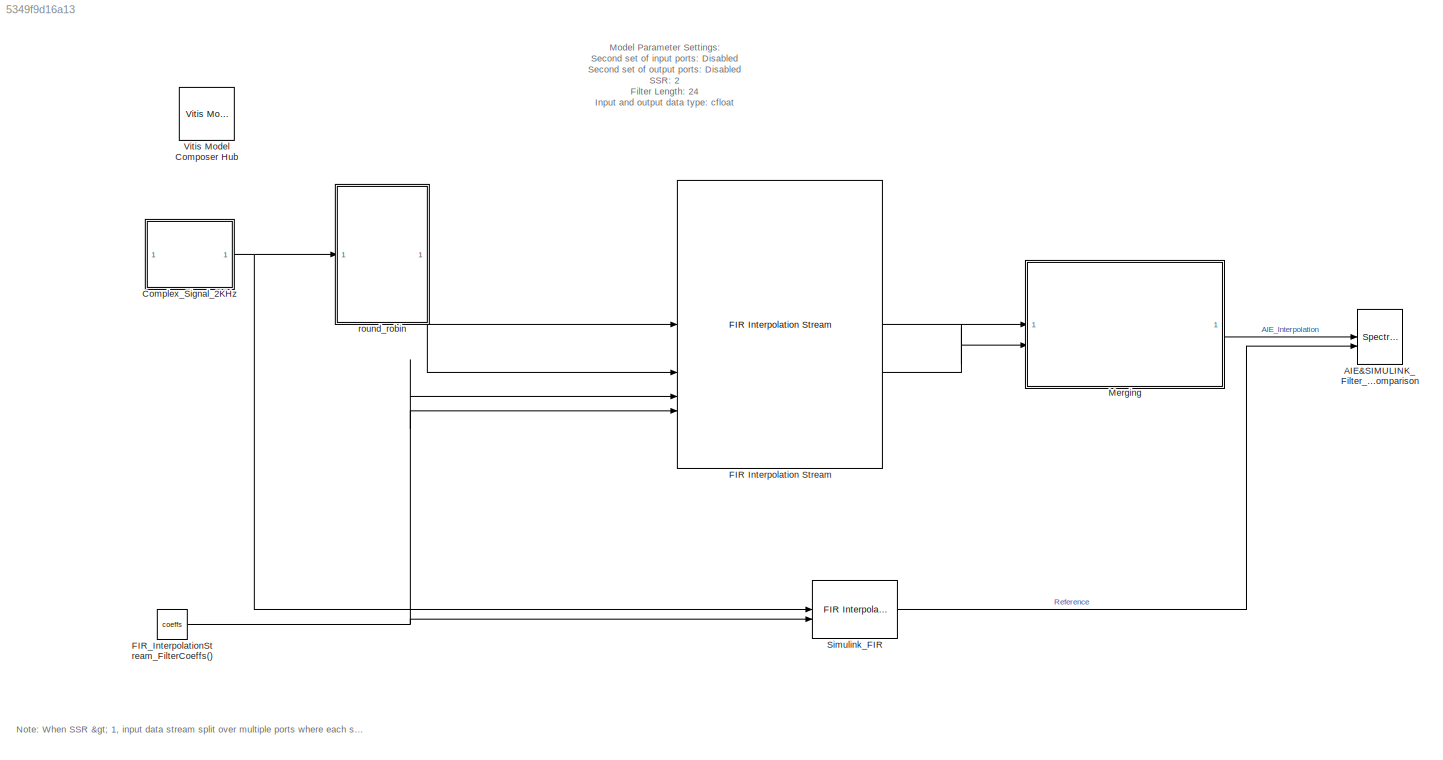
MODEL slx_5349f9d16a13
KIND model
CONFIG AbsTol = auto
CONFIG EnableMultiTasking = off
CONFIG FixedStep = auto
CONFIG InitFcn = SSR = 2;\nFs = 50e3;               % Sampling Frequency\nFpass = 16000;            % Passband Frequency\nFstop = 23000;            % Stopband Frequency\nDpass = 0.00460513763;    % Passband Ripple\nDstop = 0.0001;           % Stopband Attenuation\ndens  = 16;                   % Density Factor\n% Calculate the order from the parameters using FIRPMORD.\n[N, Fo, Ao, W] = firpmord([Fpass, Fstop]/(Fs/2), [1 0...<+121ch>
CONFIG MaxStep = auto
CONFIG MinStep = auto
CONFIG RelTol = 1e-3
CONFIG SampleTimeConstraint = Unconstrained
CONFIG SolverName = VariableStepAuto
CONFIG StartTime = 0.0
CONFIG StopTime = 5
BLOCK [SpectrumAnalyzer] AIE&SIMULINK_Filter_Spectrum_Comparison
  AllowFFTLengthLessThanSamplesPerUpdate = on
  AveragingMethod = Exponential
  ChannelNames = [""]
  DefaultConfigurationName = spbscopes.SpectrumAnalyzerBlockCfg
  GraphicalSettings = {"GraphicalSettings":{"Style":{"BackgroundColor":[0.12941176470588237,0.12941176470588237,0.12941176470588237],"AxesColor":[0.070588235294117646,0.070588235294117646,0.070588235294117646],"LabelsColor":[0.85098039215686272,0.85098039215686272,0.85098039215686272],"PreserveColors":false,"Visible":[true,true],"LineStyle":["-","-"],"LineWidth":[1.5,1.5],"BarWidth":[0.9,0.9],"LineColor":[[1,0.90980392...<+1098ch>
  NumInputPorts = 2
  ScopeFrameLocation = window
  ScopeSpecificationString = spbscopes.SpectrumAnalyzerBlockCfg('CurrentConfiguration', extmgr.ConfigurationSet(extmgr.Configuration('Core','General UI',true,'FigureColor',[0.16        0.16        0.16]),extmgr.Configuration('Visuals','Spectrum',true,'Title','','YLabel','','MinYLim','-74.4883','MaxYLim','34.8519','Legend',true,'AxesProperties',struct('XGrid',{'on','on'},'YGrid',{'on','on'},'ZGrid',{'on','on'},'Color',{[0 0 0]...<+2398ch>
  ShowLegend = on
  Span = 49999.99999999999
  StartFrequency = -24999.999999999996
  StopFrequency = 24999.999999999996
  Visible = on
  WasSavedAsWebScope = on
  WindowPosition = [802.000000,384.000000,800.000000,500.000000,]
  YLimits = [-185.60764941,47.23049306]
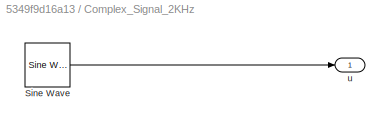
BLOCK [SubSystem] Complex_Signal_2KHz
BLOCK [Reference] Complex_Signal_2KHz/Sine Wave  REF=dspsrcs4/Sine Wave
  SourceBlock = dspsrcs4/Sine Wave
  SourceType = Sine Wave
BLOCK [Outport] Complex_Signal_2KHz/u
BLOCK [Reference] FIR Interpolation Stream  REF=aieDSP/FIR Interpolation Stream
  SourceBlock = aieDSP/FIR Interpolation Stream
  SourceType = FIR Interpolation Stream
BLOCK [Constant] FIR_InterpolationStream_FilterCoeffs()
  OutDataTypeStr = single
  Value = coeffs
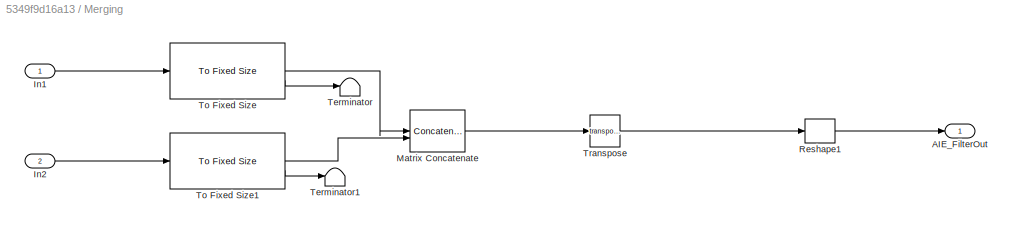
BLOCK [SubSystem] Merging
BLOCK [Outport] Merging/AIE_FilterOut
BLOCK [Inport] Merging/In1
BLOCK [Inport] Merging/In2
  Port = 2
BLOCK [Concatenate] Merging/Matrix Concatenate
  ConcatenateDimension = 2
  Mode = Multidimensional array
BLOCK [Reshape] Merging/Reshape1
  OutputDimensions = [1, 10]
BLOCK [Terminator] Merging/Terminator
BLOCK [Terminator] Merging/Terminator1
BLOCK [Reference] Merging/To Fixed Size  REF=aieUtilities/To Fixed Size
  SourceBlock = aieUtilities/To Fixed Size
  SourceType = To Fixed Size
BLOCK [Reference] Merging/To Fixed Size1  REF=aieUtilities/To Fixed Size
  SourceBlock = aieUtilities/To Fixed Size
  SourceType = To Fixed Size
BLOCK [Math] Merging/Transpose
  Operator = transpose
BLOCK [Reference] Simulink_FIR   REF=dspmlti4/FIR
Interpolation
  SourceBlock = dspmlti4/FIR\nInterpolation
  SourceType = FIR Interpolation
  UserDataPersistent = on
BLOCK [Reference] Vitis Model Composer Hub  REF=vmcUtilities/Vitis Model Composer Hub
  SourceBlock = vmcUtilities/Vitis Model Composer Hub
  SourceType = VMC Hub
  Tag = genX
  UserDataPersistent = on
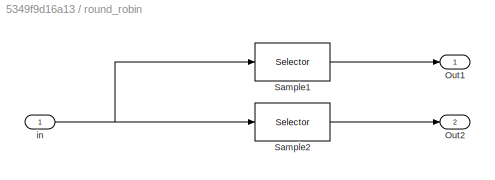
BLOCK [SubSystem] round_robin
BLOCK [Outport] round_robin/Out1
BLOCK [Outport] round_robin/Out2
  Port = 2
BLOCK [Selector] round_robin/Sample1
  IndexOptions = Index vector (dialog)
  Indices = 1:SSR:256
  InputPortWidth = 256
  OutputSizes = 1
BLOCK [Selector] round_robin/Sample2
  IndexOptions = Index vector (dialog)
  Indices = 2:SSR:256
  InputPortWidth = 256
  OutputSizes = 1
BLOCK [Inport] round_robin/in
ANNOTATION (root): Model Parameter Settings: Second set of input ports: Disabled Second set of output ports: Disabled SSR: 2 Filter Length: 24 Input and output data type: cfloat Interpolation Factor: 2 Input frame size: 256
ANNOTATION (root): Note : When SSR > 1, input data stream split over multiple ports where each successive input sample is sent to a different input port in a round-robin fashion
LINE Complex_Signal_2KHz/Sine Wave:1 -> Complex_Signal_2KHz/u:1
NET Complex_Signal_2KHz:1 -> Simulink_FIR :1, round_robin:1
LINE FIR Interpolation Stream:1 -> Merging:1
LINE FIR Interpolation Stream:2 -> Merging:2
NET FIR_InterpolationStream_FilterCoeffs():1 -> FIR Interpolation Stream:3, FIR Interpolation Stream:4, Simulink_FIR :2
LINE Merging/In1:1 -> Merging/To Fixed Size:1
LINE Merging/In2:1 -> Merging/To Fixed Size1:1
LINE Merging/Matrix Concatenate:1 -> Merging/Transpose:1
LINE Merging/Reshape1:1 -> Merging/AIE_FilterOut:1
LINE Merging/To Fixed Size1:1 -> Merging/Matrix Concatenate:2
LINE Merging/To Fixed Size1:2 -> Merging/Terminator1:1
LINE Merging/To Fixed Size:1 -> Merging/Matrix Concatenate:1
LINE Merging/To Fixed Size:2 -> Merging/Terminator:1
LINE Merging/Transpose:1 -> Merging/Reshape1:1
LINE Merging:1 -> AIE&SIMULINK_Filter_Spectrum_Comparison:1
LINE Simulink_FIR :1 -> AIE&SIMULINK_Filter_Spectrum_Comparison:2
LINE round_robin/Sample1:1 -> round_robin/Out1:1
LINE round_robin/Sample2:1 -> round_robin/Out2:1
NET round_robin/in:1 -> round_robin/Sample1:1, round_robin/Sample2:1
LINE round_robin:1 -> FIR Interpolation Stream:1
LINE round_robin:2 -> FIR Interpolation Stream:2
note: NET lines group one-source signal fan-out (src -> all destinations, sorted); 1:1 wires keep LINE
